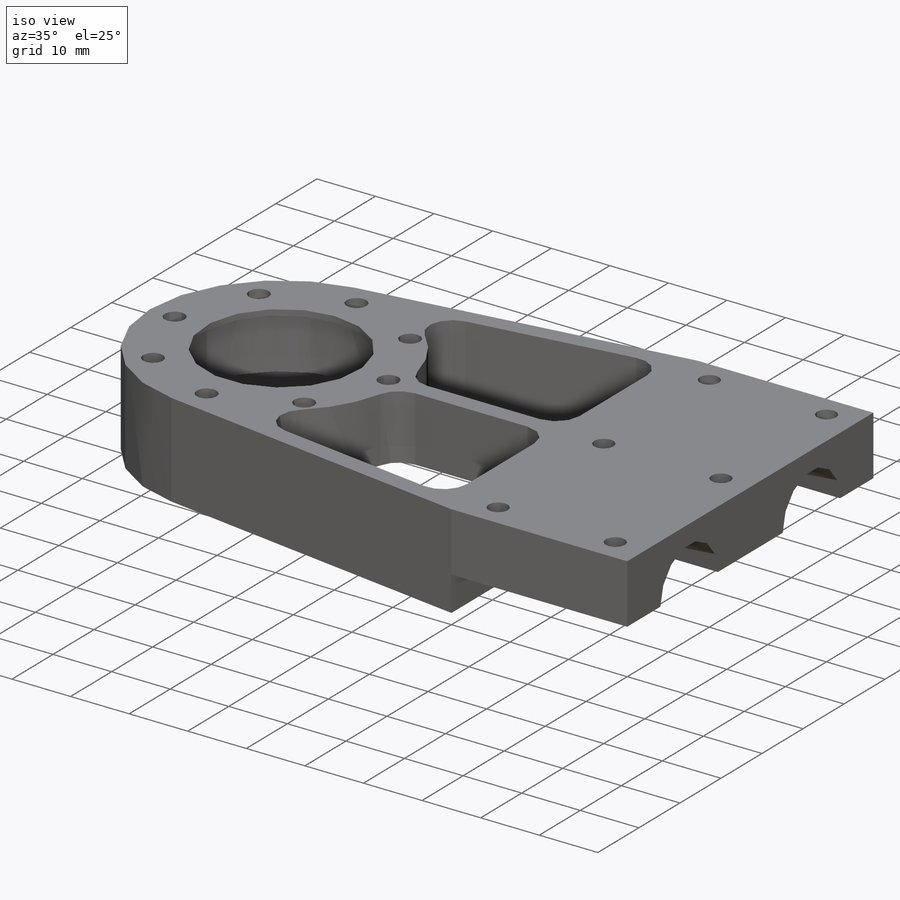
[diagram: iso view]
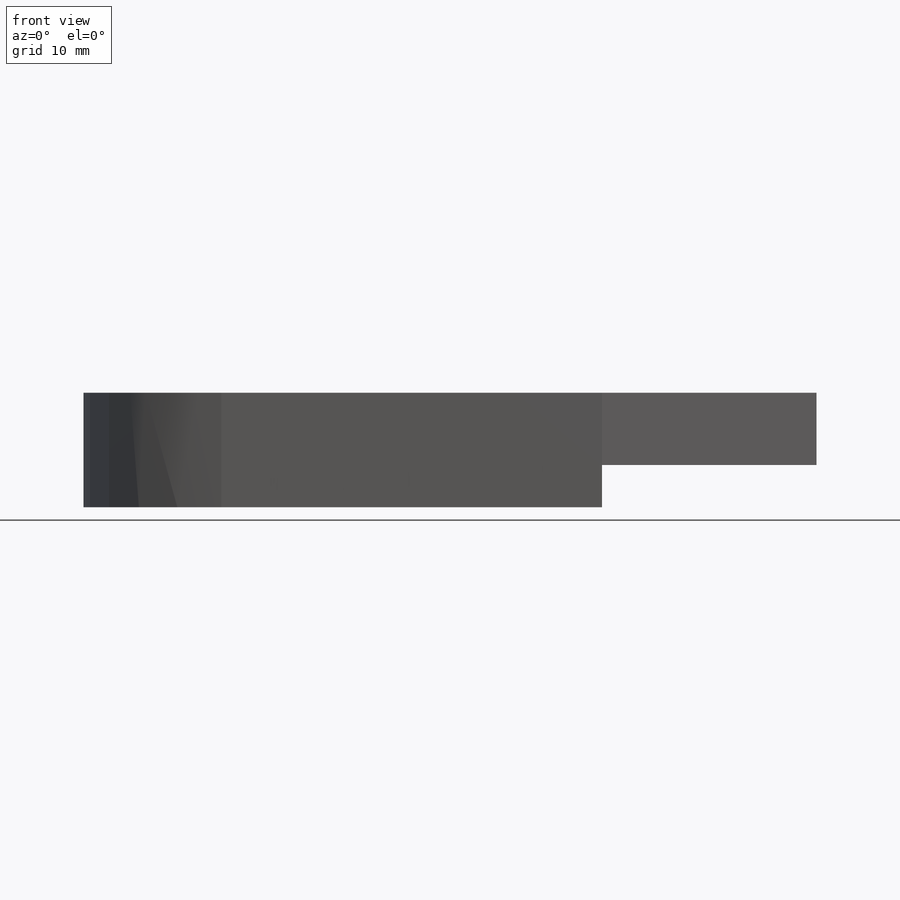
[diagram: front view]
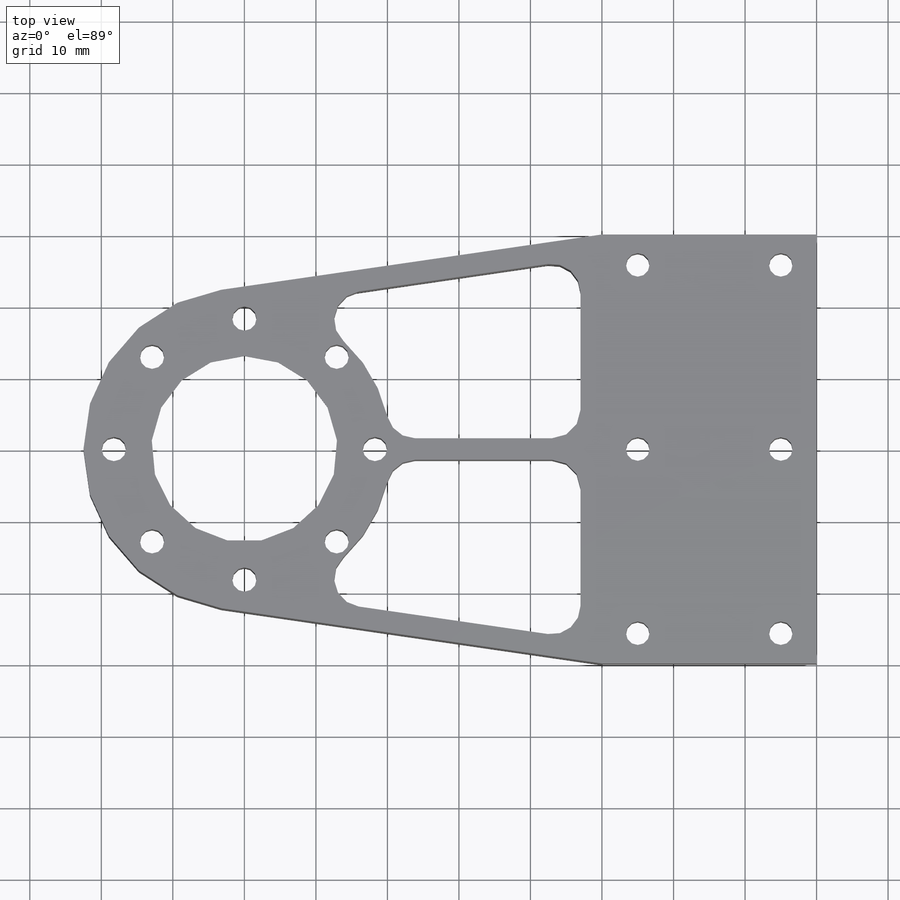
[diagram: top view]
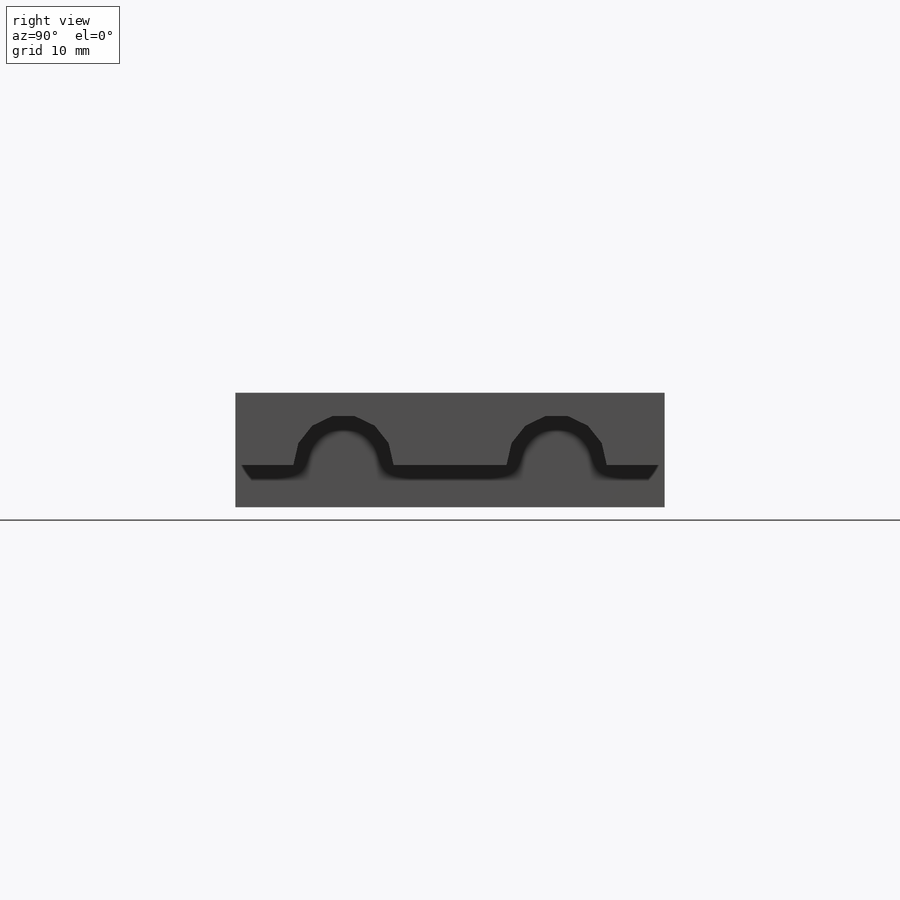
[diagram: right view]
SOLIDWORKS PART (.sldprt)
format: sldprt  version: not decoded by parser v0  size: 496,128 bytes
history: native  units: mm
features: sketch x14, cut_extrude x7, thread x6, extrude x2, hole x2, material x1, fillet x1 (+11 scaffold rows collapsed)
feature tree (44):
  scaffold x11  (default folders/planes/origin — collapsed)
  material  "3.1355 (EN-AW 2024)"
  sketch  "Эскиз1"  dims[D2=45.0mm D1=60.0mm D3=30.0mm D4=130.0mm D5=50.0mm D6=30.0mm]
  extrude  "Бобышка-Вытянуть1"  Depth=16mm
  sketch  "Эскиз2"  dims[D1=32.0mm]
  cut_extrude  "Вырез-Вытянуть1"  Depth=1mm
  sketch  "Эскиз3"  dims[D1=26.0mm]
  cut_extrude  "Вырез-Вытянуть2"  [1 undecoded]
  sketch  "Эскиз4"  dims[D1=41.0mm]
  cut_extrude  "Вырез-Вытянуть3"  Depth=10mm
  sketch  "Эскиз5"  dims[c1.D1=36.5mm c1.D2=18.25mm c2.D2=45.0deg c2.D3=4.0 c2.D4=4.0]
  hole  "Отверстие с зазором M32"  [1 undecoded]
  sketch  "Эскиз19"
  sketch  "Эскиз18"  dims[hole-wizard template sketch: 61 standard entries collapsed; hole parameters above]
  sketch  "Эскиз8"  dims[c1.D1=14.2mm c1.D3=14.2mm c1.D4=14.2mm c2.D1=14.0mm c2.D3=14.2mm c2.D2=8.0mm c3.D3=~19.291939mm c3.D4=~12.191939mm c4.D3=10.1mm c4.D1=10.1mm c4.D4=~14.480741mm c4.D2=15.1mm c5.D3=10.1mm c5.D4=0.0mm]
  cut_extrude  "Вырез-Вытянуть8"  Depth=30mm
  sketch  "Эскиз12"  dims[D1=3.0mm]
  cut_extrude  "Вырез-Вытянуть9"  [1 undecoded]
  sketch  "Эскиз13"  dims[D1=3.0mm]
  cut_extrude  "Вырез-Вытянуть10"  [1 undecoded]
  sketch  "Эскиз14"  dims[D1=3.0mm]
  cut_extrude  "Вырез-Вытянуть11"  [1 undecoded]
  sketch  "Эскиз15"  dims[D1=1.5mm D2=1.5mm]
  extrude  "Бобышка-Вытянуть2"  [1 undecoded]
  fillet  "Скругление1"  Radius=4mm
  hole  "Отверстие обработанное метчиком M4x0.71"  [1 undecoded]
  sketch  "Эскиз23"
  sketch  "Эскиз24"  dims[Диаметр проходного сверла=3.3mm Глубина проходного сверла=10.1mm]
  thread  "Отверстие резьбы11"  Diameter=4mm  [1 undecoded]
  thread  "Отверстие резьбы12"  Diameter=4mm  [1 undecoded]
  thread  "Отверстие резьбы13"  Diameter=4mm  [1 undecoded]
  thread  "Отверстие резьбы14"  Diameter=4mm  [1 undecoded]
  thread  "Отверстие резьбы15"  Diameter=4mm  [1 undecoded]
  thread  "Отверстие резьбы16"  Diameter=4mm  [1 undecoded]
decode coverage: 23 of 32 modeling features carry decoded parameters
note: ~ marks probable driven/reference dimensions
note: 13 parameter values undecoded
summary: no parameter record found for 7 features
note: suppression state not decoded; provenance and decode notes live in map.json
